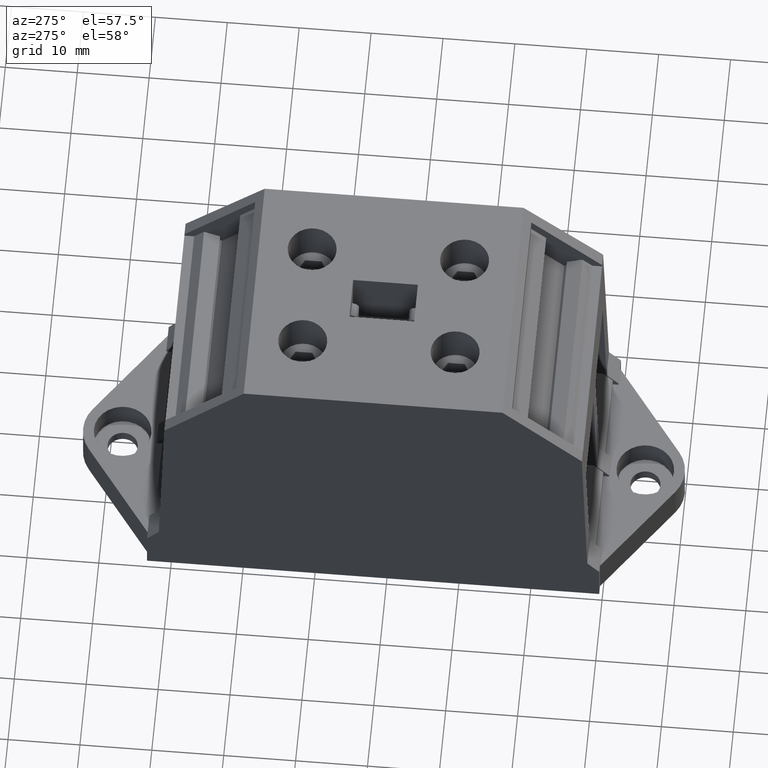
[diagram: clean part render]
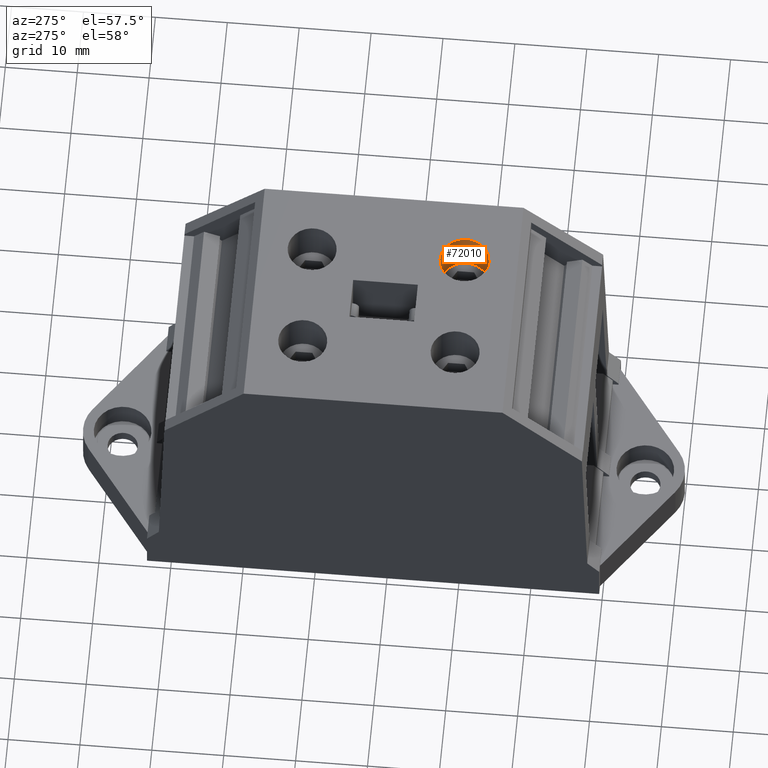
[diagram: same view with one face highlighted and labeled with its STEP entity id]
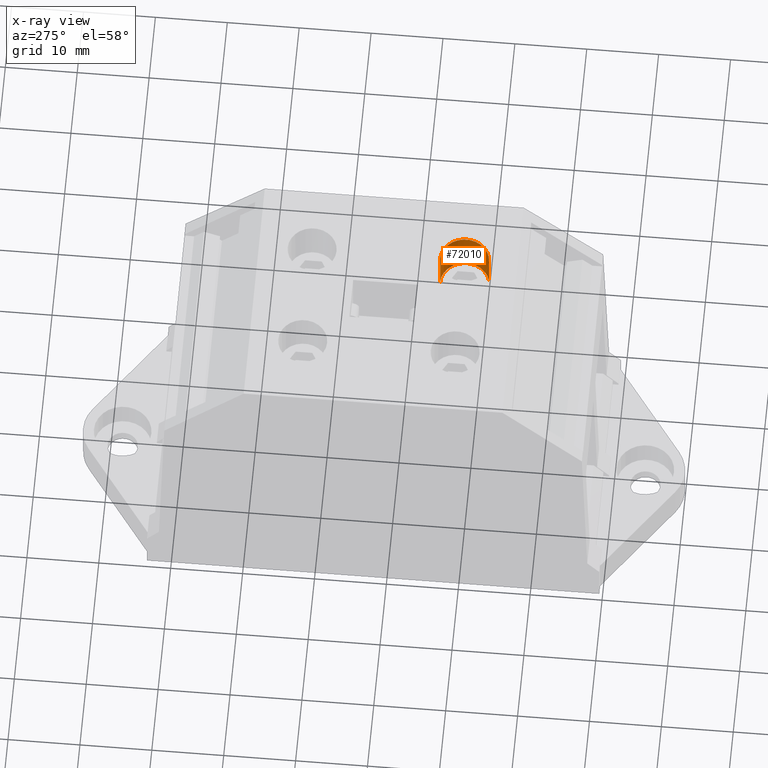
[diagram: x-ray of the same camera — body ghosted, the highlighted face saturated]
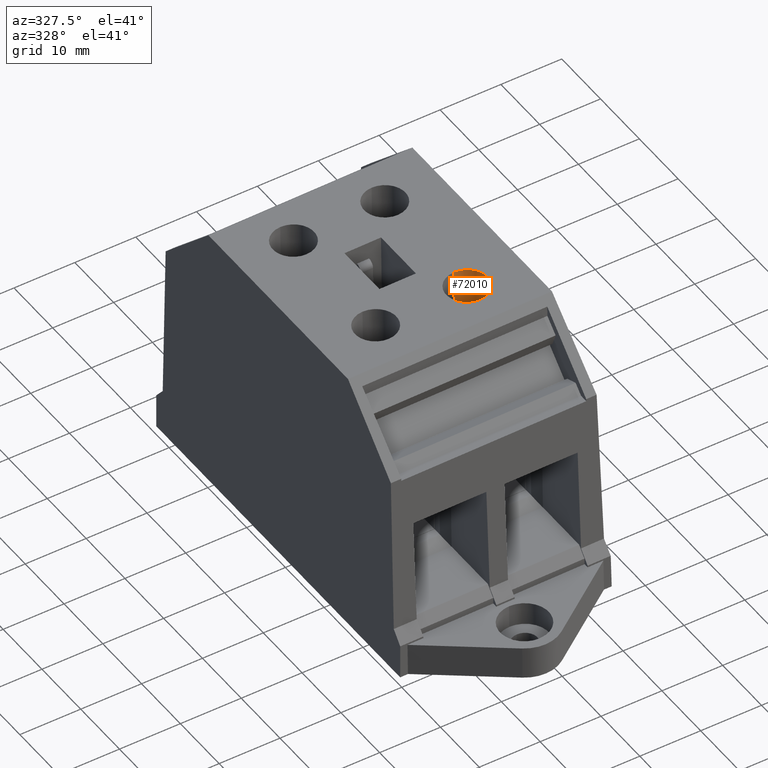
[diagram: same view with one face highlighted and labeled with its STEP entity id]
A machine part, auxiliary view. The second image highlights one B-rep face of the part: STEP entity #72010.
The next image is the same camera in x-ray: the body ghosted, the highlighted face saturated — about 0% of this face is hidden behind the body in this view.
A second angle (auxiliary view) of the same face is appended — the face is thin or edge-on in the first view.
In plain terms, the highlighted cylindrical surface (edge-blend (fillet) strip) has radius 3.4 mm, axis along (-0.014, 0, 0.9999).
Its self-contained STEP definition (entity closure, byte-faithful):
#25580=CARTESIAN_POINT('',(72.6472364380739,135.140284881893,
-1.06581410364015E-14));
#25590=DIRECTION('',(-3.76782071299444E-16,1.,6.04442711160671E-18));
#25600=DIRECTION('',(1.,3.76779325539336E-16,-6.05054028165098E-17));
#25610=AXIS2_PLACEMENT_3D('',#25580,#25590,#25600);
#25620=CIRCLE('',#25610,3.4);
#25630=CARTESIAN_POINT('',(76.0472364380739,135.140284881893,
-1.08638594059776E-14));
#25640=VERTEX_POINT('',#25630);
#25650=CARTESIAN_POINT('',(69.2472364380739,135.140284881893,
-1.08688025785355E-14));
#25660=VERTEX_POINT('',#25650);
#25670=EDGE_CURVE('',#25640,#25660,#25620,.T.);
#26120=CARTESIAN_POINT('',(69.2472364380739,135.140284881893,
-1.08688025785355E-14));
#26130=DIRECTION('',(-3.76782071299444E-16,1.,6.04442711160671E-18));
#26140=VECTOR('',#26130,1.);
#26150=LINE('',#26120,#26140);
#26160=CARTESIAN_POINT('',(69.2472364380739,128.940284881893,
-1.09062780266274E-14));
#26170=VERTEX_POINT('',#26160);
#26180=EDGE_CURVE('',#26170,#25660,#26150,.T.);
#26200=CARTESIAN_POINT('',(72.6472364380739,128.940284881893,
-1.06581410364015E-14));
#26210=DIRECTION('',(-3.76782071299444E-16,1.,6.04442711160671E-18));
#26220=DIRECTION('',(1.,3.76782071299444E-16,-6.05054028165098E-17));
#26230=AXIS2_PLACEMENT_3D('',#26200,#26210,#26220);
#26240=CIRCLE('',#26230,3.4);
#26250=CARTESIAN_POINT('',(76.0472364380739,128.940284881893,
-1.09013348540696E-14));
#26260=VERTEX_POINT('',#26250);
#26290=CARTESIAN_POINT('',(76.0472364380739,135.140284881893,
-1.08638594059776E-14));
#26300=DIRECTION('',(-3.76782071299444E-16,1.,6.04442711160671E-18));
#26310=VECTOR('',#26300,1.);
#26320=LINE('',#26290,#26310);
#26330=EDGE_CURVE('',#26260,#25640,#26320,.T.);
#26510=EDGE_CURVE('',#26260,#26170,#26240,.T.);
#71900=CARTESIAN_POINT('',(72.6472364380739,135.140284881893,
-1.06581410364015E-14));
#71910=DIRECTION('',(-3.76782071299444E-16,1.,6.04442711160671E-18));
#71920=DIRECTION('',(1.,3.76779325539336E-16,-6.05054028165098E-17));
#71930=AXIS2_PLACEMENT_3D('',#71900,#71910,#71920);
#71940=CYLINDRICAL_SURFACE('',#71930,3.4);
#71950=ORIENTED_EDGE('',*,*,#26510,.F.);
#71960=ORIENTED_EDGE('',*,*,#26180,.F.);
#71970=ORIENTED_EDGE('',*,*,#25670,.T.);
#71980=ORIENTED_EDGE('',*,*,#26330,.T.);
#71990=EDGE_LOOP('',(#71980,#71970,#71960,#71950));
#72000=FACE_OUTER_BOUND('',#71990,.T.);
#72010=ADVANCED_FACE('',(#72000),#71940,.F.);